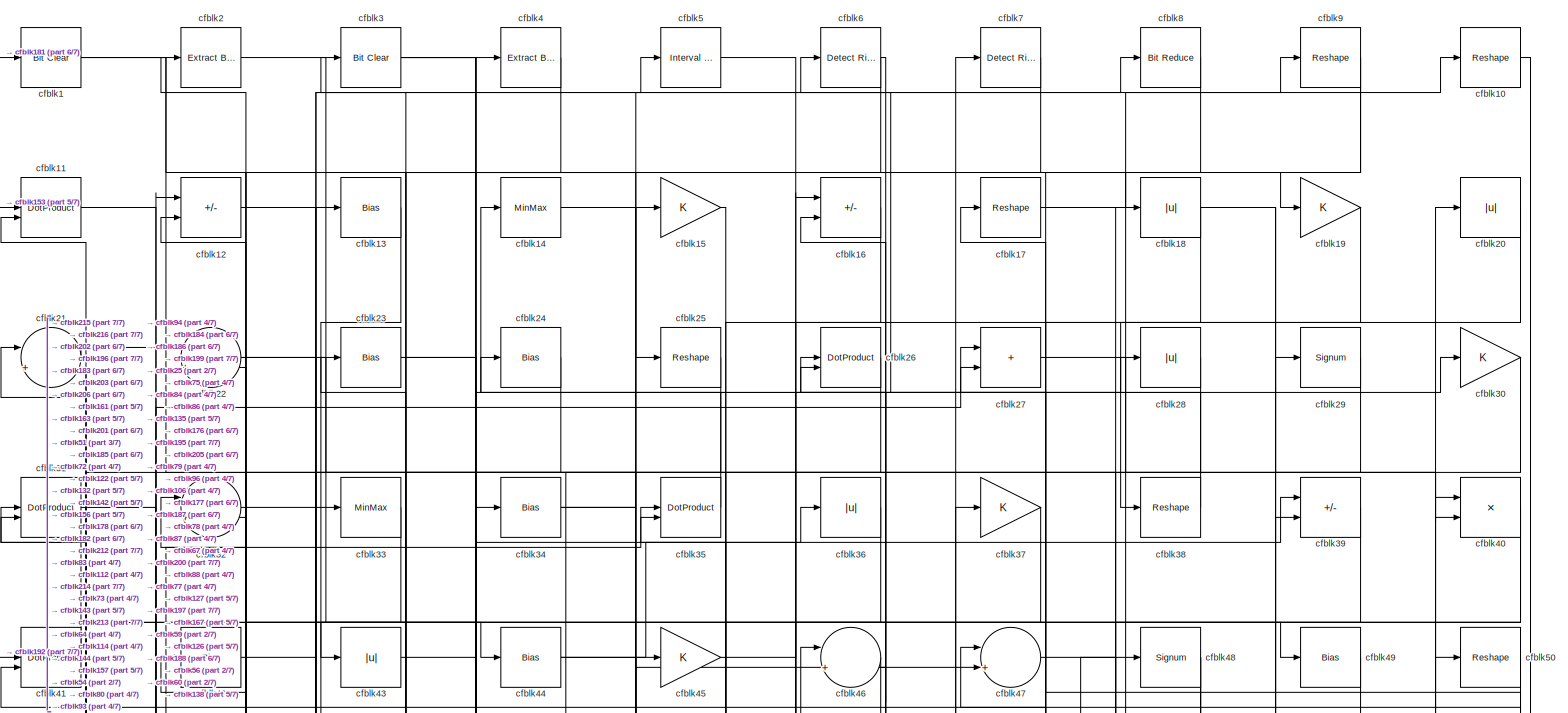
[diagram: root canvas - part 1/7, full width, top band]
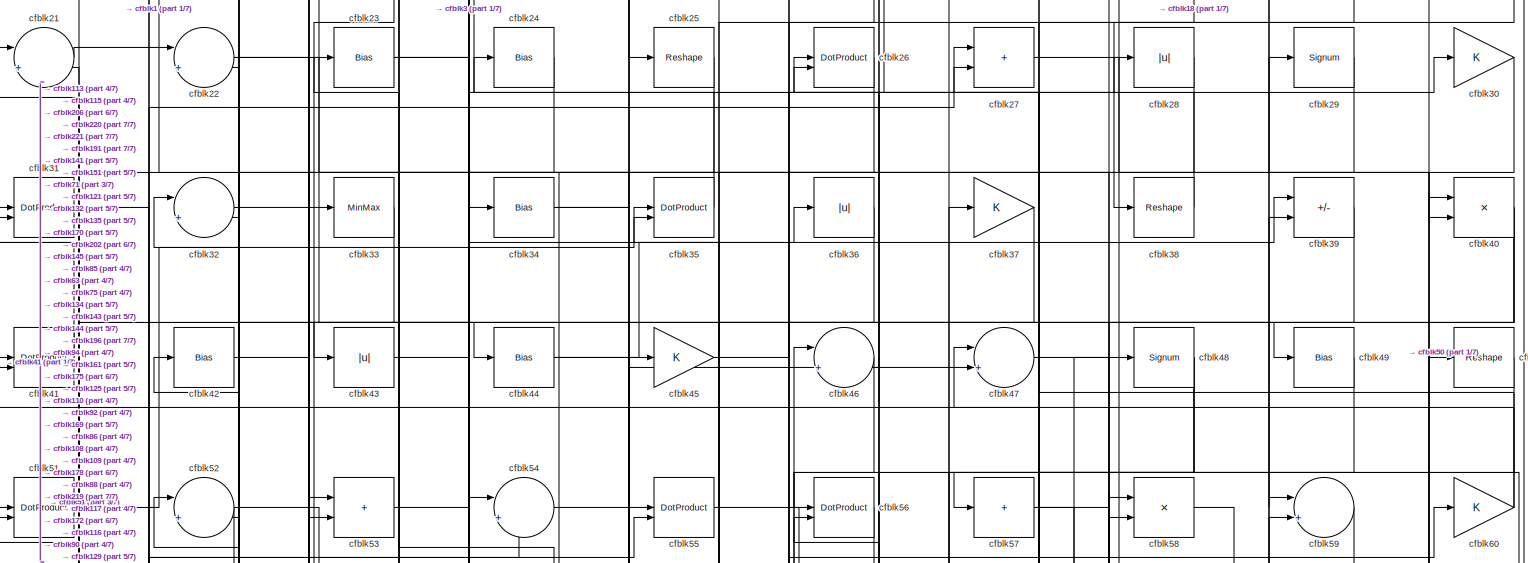
[diagram: root canvas - part 2/7, full width, top band]
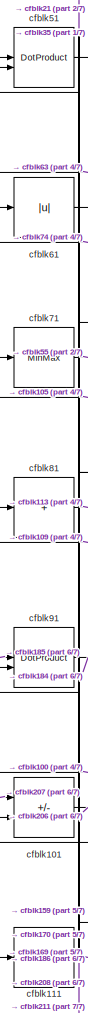
[diagram: root canvas - part 3/7, middle left region]
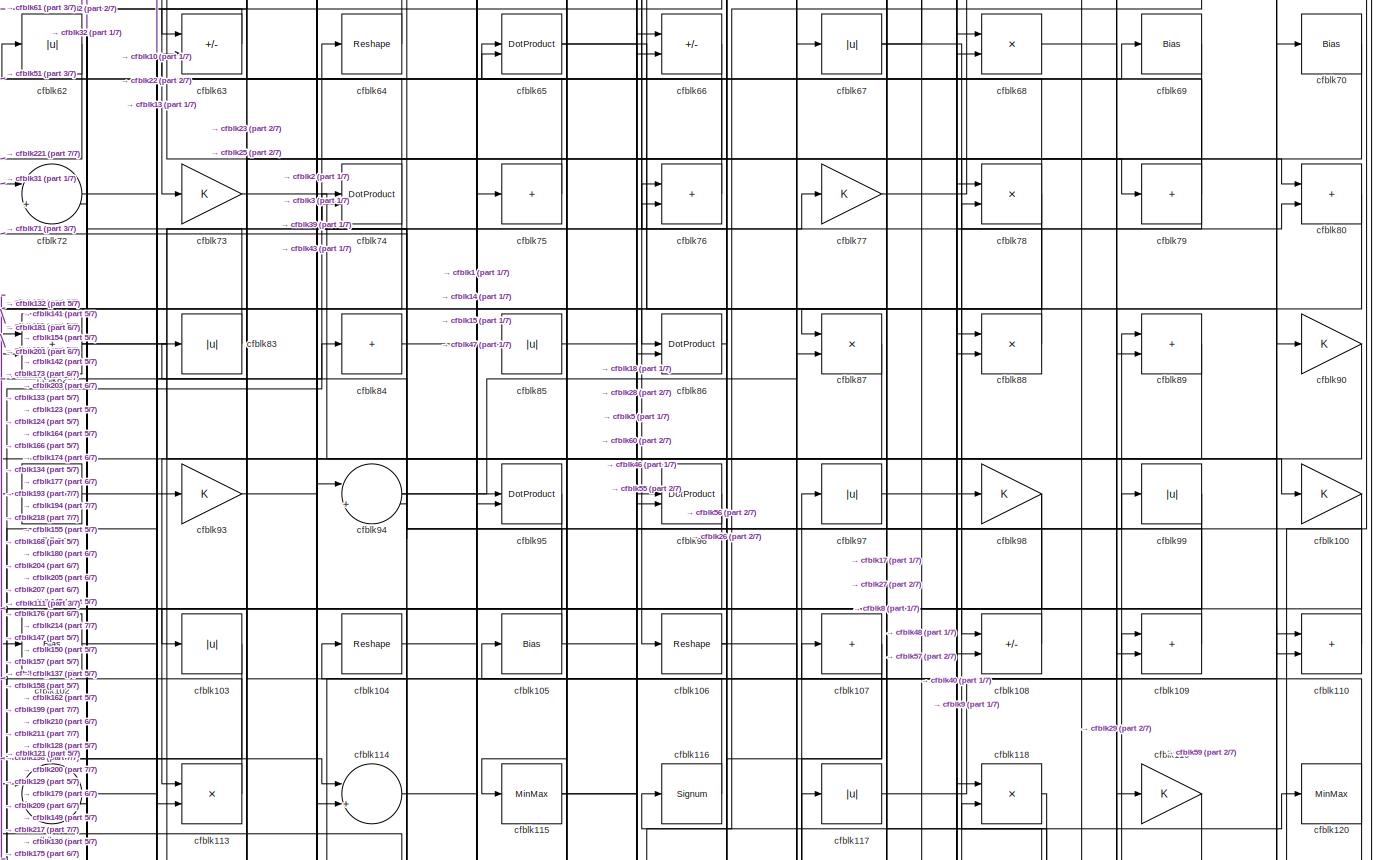
[diagram: root canvas - part 4/7, full width, middle band]
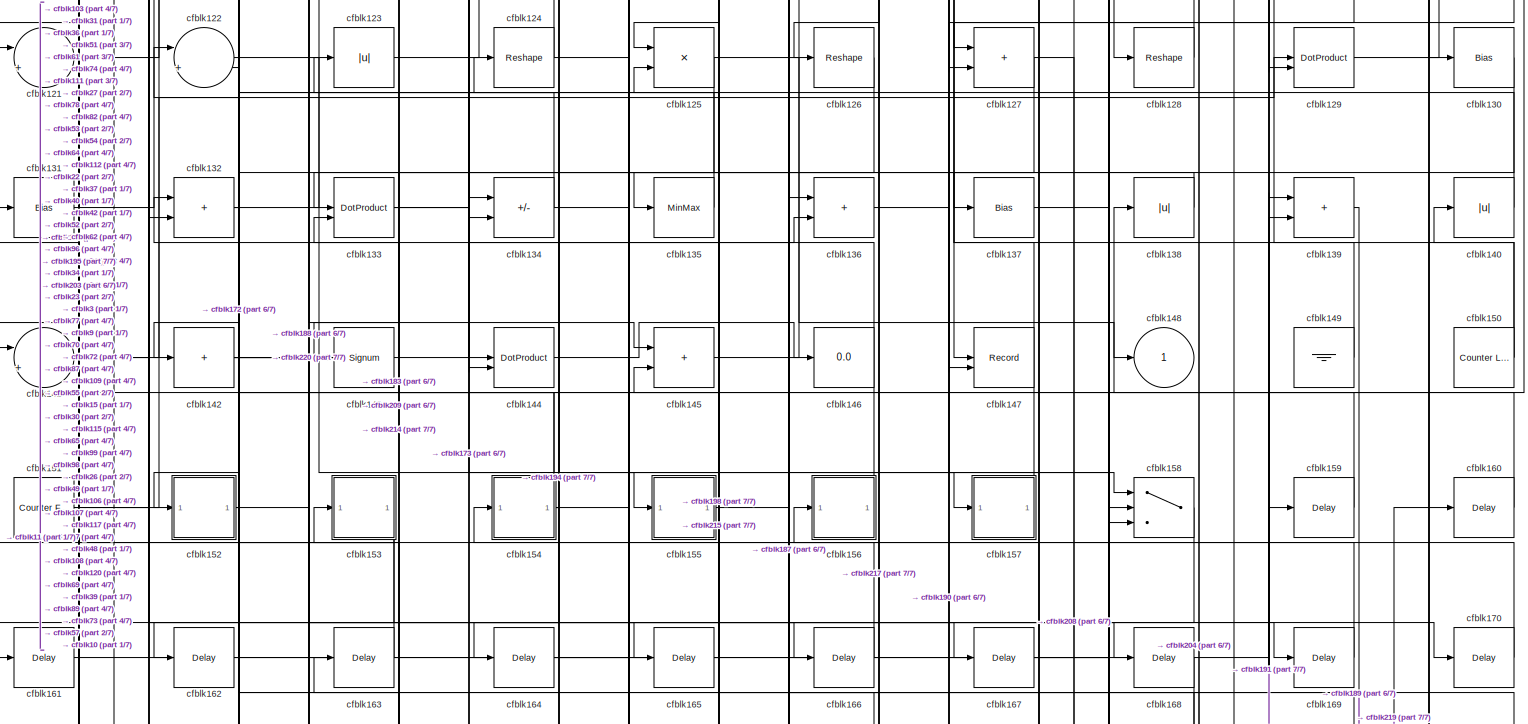
[diagram: root canvas - part 5/7, full width, middle band]
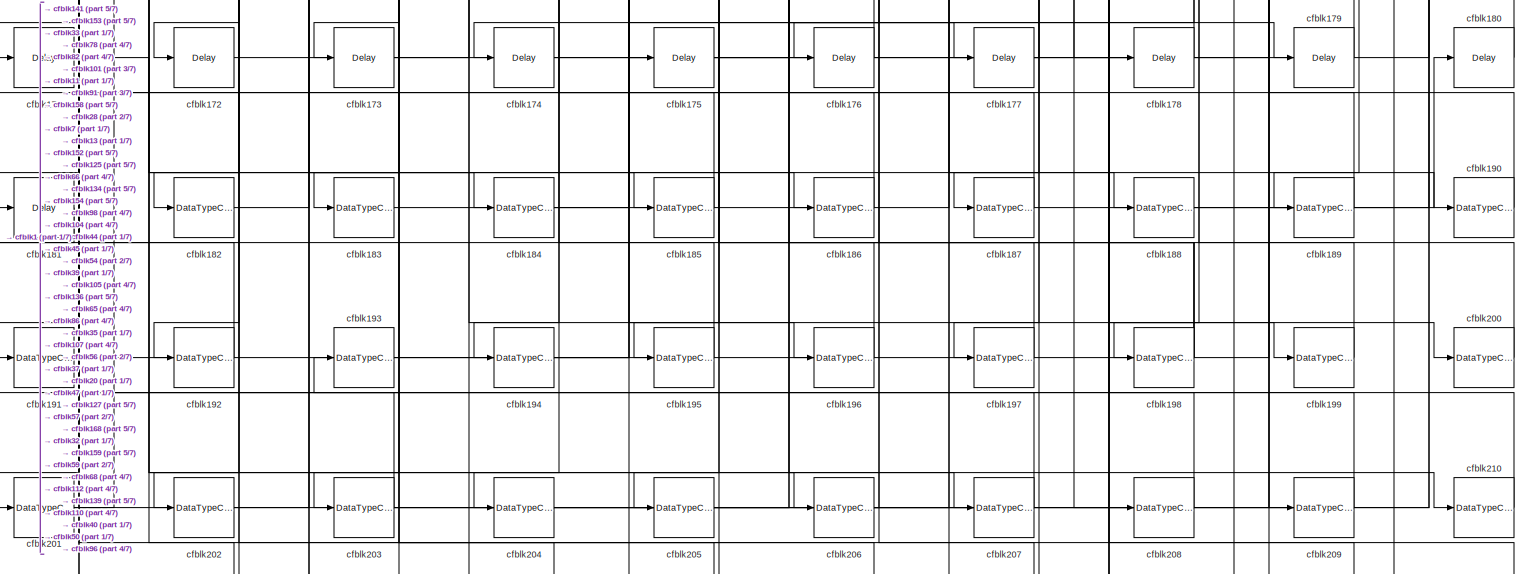
[diagram: root canvas - part 6/7, full width, bottom band]
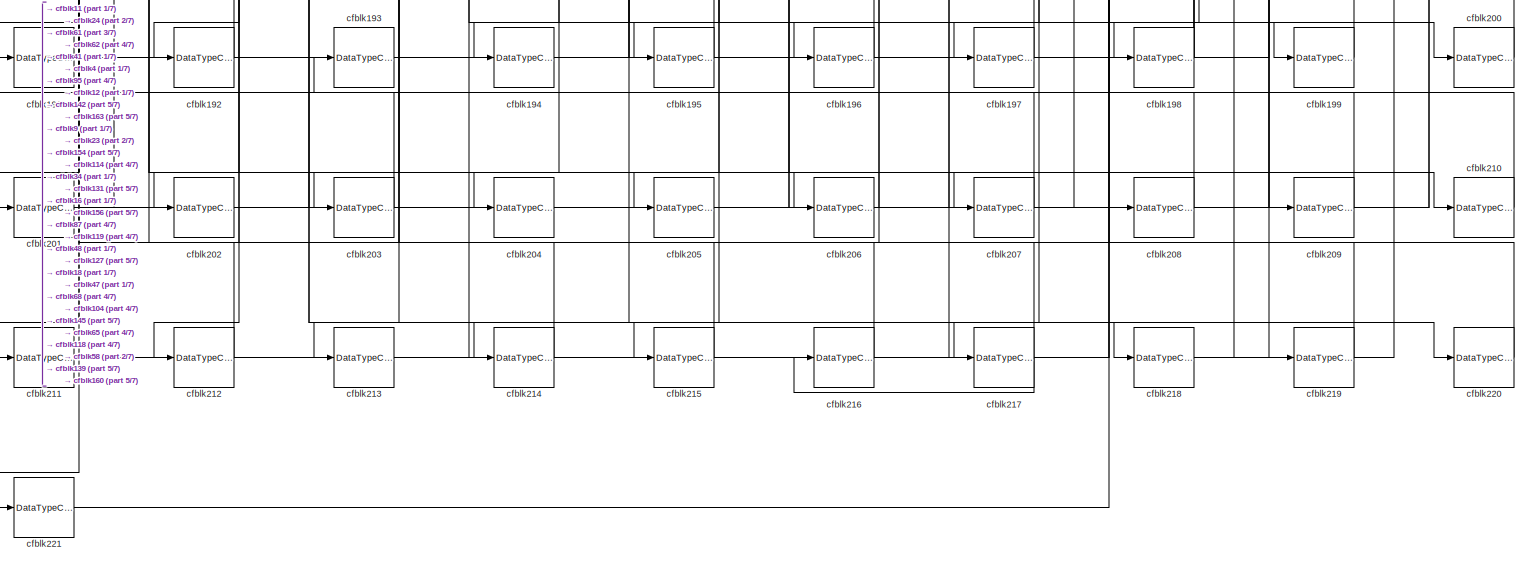
[diagram: root canvas - part 7/7, full width, bottom band]
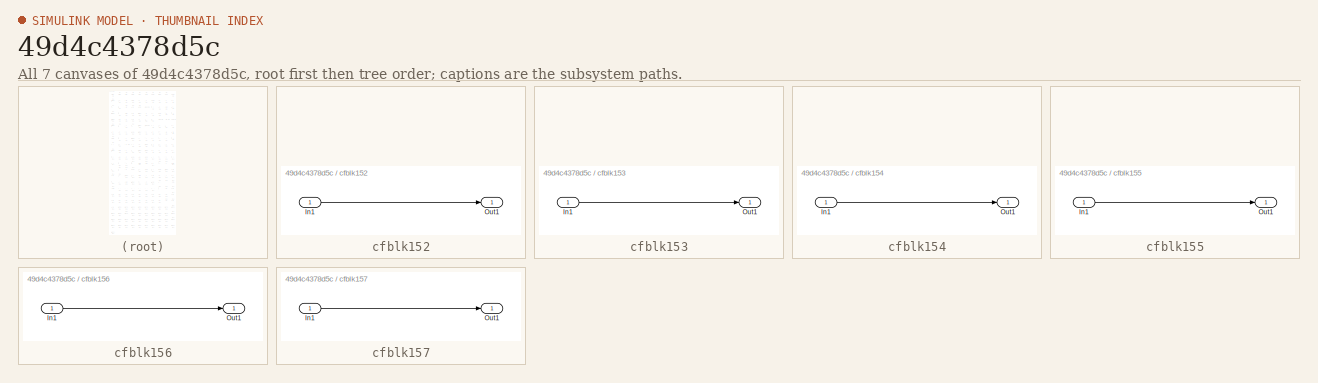
[diagram: thumbnail index - all 7 canvases of the model, root first then tree order]
MODEL slx_49d4c4378d5c
KIND model
CONFIG AbsTol = auto
CONFIG EnableMultiTasking = off
CONFIG FixedStep = auto
CONFIG MaxStep = auto
CONFIG MinStep = auto
CONFIG RelTol = 1e-3
CONFIG SampleTimeConstraint = Unconstrained
CONFIG SolverName = VariableStepAuto
CONFIG StartTime = 0.0
CONFIG StopTime = 10.0
BLOCK [Reference] cfblk1  REF=simulink/Logic and Bit
Operations/Bit Clear
  LibrarySourceBlock = hdlsllib/Logic and Bit\nOperations/Bit Clear
  SourceBlock = simulink/Logic and Bit\nOperations/Bit Clear
  SourceType = Bit Clear
BLOCK [Reshape] cfblk10
BLOCK [Gain] cfblk100
BLOCK [Sum] cfblk101
  IconShape = rectangular
  Inputs = +-
BLOCK [Bias] cfblk102
  Bias = 0.0
  SaturateOnIntegerOverflow = off
BLOCK [Abs] cfblk103
  SaturateOnIntegerOverflow = off
BLOCK [Reshape] cfblk104
BLOCK [Bias] cfblk105
  Bias = 0.0
  SaturateOnIntegerOverflow = off
BLOCK [Reshape] cfblk106
BLOCK [Sum] cfblk107
  IconShape = rectangular
  Inputs = +
BLOCK [Sum] cfblk108
  IconShape = rectangular
  Inputs = +-
BLOCK [Sum] cfblk109
  IconShape = rectangular
BLOCK [DotProduct] cfblk11
  OutDataTypeStr = Inherit: Inherit via internal rule
BLOCK [Sum] cfblk110
  IconShape = rectangular
BLOCK [Sum] cfblk111
  IconShape = rectangular
  Inputs = +
BLOCK [Sum] cfblk112
  Inputs = |++
BLOCK [Product] cfblk113
  Inputs = */
  RndMeth = Zero
  SaturateOnIntegerOverflow = on
BLOCK [Sum] cfblk114
  Inputs = |++
BLOCK [MinMax] cfblk115
BLOCK [Signum] cfblk116
BLOCK [Abs] cfblk117
  SaturateOnIntegerOverflow = off
BLOCK [Product] cfblk118
  Inputs = */
  RndMeth = Zero
  SaturateOnIntegerOverflow = on
BLOCK [Gain] cfblk119
BLOCK [Sum] cfblk12
  IconShape = rectangular
  Inputs = +-
BLOCK [MinMax] cfblk120
BLOCK [Sum] cfblk121
  Inputs = |++
BLOCK [Sum] cfblk122
  Inputs = |++
BLOCK [Abs] cfblk123
  SaturateOnIntegerOverflow = off
BLOCK [Reshape] cfblk124
BLOCK [Product] cfblk125
  Inputs = */
  RndMeth = Zero
  SaturateOnIntegerOverflow = on
BLOCK [Reshape] cfblk126
BLOCK [Sum] cfblk127
  IconShape = rectangular
BLOCK [Reshape] cfblk128
BLOCK [DotProduct] cfblk129
  OutDataTypeStr = Inherit: Inherit via internal rule
BLOCK [Bias] cfblk13
  Bias = 0.0
  SaturateOnIntegerOverflow = off
BLOCK [Bias] cfblk130
  Bias = 0.0
  SaturateOnIntegerOverflow = off
BLOCK [Bias] cfblk131
  Bias = 0.0
  SaturateOnIntegerOverflow = off
BLOCK [Sum] cfblk132
  IconShape = rectangular
BLOCK [DotProduct] cfblk133
  OutDataTypeStr = Inherit: Inherit via internal rule
BLOCK [Sum] cfblk134
  IconShape = rectangular
  Inputs = +-
BLOCK [MinMax] cfblk135
BLOCK [Sum] cfblk136
  IconShape = rectangular
BLOCK [Bias] cfblk137
  Bias = 0.0
  SaturateOnIntegerOverflow = off
BLOCK [Abs] cfblk138
  SaturateOnIntegerOverflow = off
BLOCK [Sum] cfblk139
  IconShape = rectangular
BLOCK [MinMax] cfblk14
BLOCK [Abs] cfblk140
  SaturateOnIntegerOverflow = off
BLOCK [Sum] cfblk141
  Inputs = |++
BLOCK [Sum] cfblk142
  IconShape = rectangular
  Inputs = +
BLOCK [Signum] cfblk143
BLOCK [DotProduct] cfblk144
  OutDataTypeStr = Inherit: Inherit via internal rule
BLOCK [Sum] cfblk145
  IconShape = rectangular
BLOCK [Display] cfblk146
  Decimation = 1
BLOCK [Record] cfblk147
  CompatibilityTag = XY
  FileSettingsInternal = {"entries":[{"content":{"excelSettings":{"content":{},"type":"Streamout.ExcelSettings"}},"type":"Streamout.FileSettingStorage","uuid":""}],"packageUris":["http:\/\/schema.mathworks.com\/mf0\/streamout_blocks\/R2020a"],"version":"1.0"}
  Layout = [1 1]
  SignalsInternal = {"entries":[{"content":{"signals":[{"content":{"blockPath":[],"dimensions":[1],"domain":"","lineColor":"#a2142f","plots":[1],"port":1,"signalID":3105,"signalName":"XY Graph:1"},"type":"RecordBlkView.Signal","uuid":""},{"content":{"blockPath":[],"dimensions":[1],"domain":"","lineColor":"#139fff","plots":[1],"port":2,"signalID":3108,"signalName":"XY Graph:2"},"type":"RecordBlkView.Signal","uuid":""}...<+146ch>
  VisualizationBindings = {"xyplotplugin":{"info":[{"series":[{"bindingParametersList":[{"parameter":"X-Axis","signalID":3105,"signalName":"XY Graph:1"},{"parameter":"Y-Axis","signalID":3108,"signalName":"XY Graph:2"}],"seriesID":46213}],"subplotID":1}]}}
  st = -1
BLOCK [Outport] cfblk148
  VectorParamsAs1DForOutWhenUnconnected = off
BLOCK [Ground] cfblk149
BLOCK [Gain] cfblk15
BLOCK [Reference] cfblk150  REF=hdlsllib/Sources/Counter
Limited
  SourceBlock = hdlsllib/Sources/Counter\nLimited
  SourceType = Counter Limited
BLOCK [Reference] cfblk151  REF=hdlsllib/Sources/Counter
Free-Running
  SourceBlock = hdlsllib/Sources/Counter\nFree-Running
  SourceType = Counter Free-Running
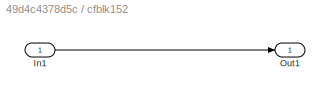
BLOCK [SubSystem] cfblk152
  LibrarySourceBlock = hdlsllib/Ports &\nSubsystems/Subsystem
BLOCK [Inport] cfblk152/In1
BLOCK [Outport] cfblk152/Out1
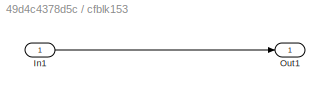
BLOCK [SubSystem] cfblk153
  LibrarySourceBlock = hdlsllib/Ports &\nSubsystems/Subsystem
BLOCK [Inport] cfblk153/In1
BLOCK [Outport] cfblk153/Out1
BLOCK [SubSystem] cfblk154
  LibrarySourceBlock = hdlsllib/Ports &\nSubsystems/Subsystem
BLOCK [Inport] cfblk154/In1
BLOCK [Outport] cfblk154/Out1
BLOCK [SubSystem] cfblk155
  LibrarySourceBlock = hdlsllib/Ports &\nSubsystems/Subsystem
BLOCK [Inport] cfblk155/In1
BLOCK [Outport] cfblk155/Out1
BLOCK [SubSystem] cfblk156
  LibrarySourceBlock = hdlsllib/Ports &\nSubsystems/Subsystem
BLOCK [Inport] cfblk156/In1
BLOCK [Outport] cfblk156/Out1
BLOCK [SubSystem] cfblk157
  LibrarySourceBlock = hdlsllib/Ports &\nSubsystems/Subsystem
BLOCK [Inport] cfblk157/In1
BLOCK [Outport] cfblk157/Out1
BLOCK [Switch] cfblk158
  InputSameDT = off
  SaturateOnIntegerOverflow = off
BLOCK [Delay] cfblk159
  InputPortMap = u0
  SampleTime = 1
BLOCK [Sum] cfblk16
  IconShape = rectangular
  Inputs = +-
BLOCK [Delay] cfblk160
  InputPortMap = u0
  SampleTime = 1
BLOCK [Delay] cfblk161
  InputPortMap = u0
  SampleTime = 1
BLOCK [Delay] cfblk162
  InputPortMap = u0
  SampleTime = 1
BLOCK [Delay] cfblk163
  InputPortMap = u0
  SampleTime = 1
BLOCK [Delay] cfblk164
  InputPortMap = u0
  SampleTime = 1
BLOCK [Delay] cfblk165
  InputPortMap = u0
  SampleTime = 1
BLOCK [Delay] cfblk166
  InputPortMap = u0
  SampleTime = 1
BLOCK [Delay] cfblk167
  InputPortMap = u0
  SampleTime = 1
BLOCK [Delay] cfblk168
  InputPortMap = u0
  SampleTime = 1
BLOCK [Delay] cfblk169
  InputPortMap = u0
  SampleTime = 1
BLOCK [Reshape] cfblk17
BLOCK [Delay] cfblk170
  InputPortMap = u0
  SampleTime = 1
BLOCK [Delay] cfblk171
  InputPortMap = u0
  SampleTime = 1
BLOCK [Delay] cfblk172
  InputPortMap = u0
  SampleTime = 1
BLOCK [Delay] cfblk173
  InputPortMap = u0
  SampleTime = 1
BLOCK [Delay] cfblk174
  InputPortMap = u0
  SampleTime = 1
BLOCK [Delay] cfblk175
  InputPortMap = u0
  SampleTime = 1
BLOCK [Delay] cfblk176
  InputPortMap = u0
  SampleTime = 1
BLOCK [Delay] cfblk177
  InputPortMap = u0
  SampleTime = 1
BLOCK [Delay] cfblk178
  InputPortMap = u0
  SampleTime = 1
BLOCK [Delay] cfblk179
  InputPortMap = u0
  SampleTime = 1
BLOCK [Abs] cfblk18
  SaturateOnIntegerOverflow = off
BLOCK [Delay] cfblk180
  InputPortMap = u0
  SampleTime = 1
BLOCK [Delay] cfblk181
  InputPortMap = u0
  SampleTime = 1
BLOCK [DataTypeConversion] cfblk182
  OutDataTypeStr = uint8
  RndMeth = Floor
  SaturateOnIntegerOverflow = off
BLOCK [DataTypeConversion] cfblk183
  OutDataTypeStr = uint8
  RndMeth = Floor
  SaturateOnIntegerOverflow = off
BLOCK [DataTypeConversion] cfblk184
  OutDataTypeStr = uint8
  RndMeth = Floor
  SaturateOnIntegerOverflow = off
BLOCK [DataTypeConversion] cfblk185
  OutDataTypeStr = uint8
  RndMeth = Floor
  SaturateOnIntegerOverflow = off
BLOCK [DataTypeConversion] cfblk186
  OutDataTypeStr = uint8
  RndMeth = Floor
  SaturateOnIntegerOverflow = off
BLOCK [DataTypeConversion] cfblk187
  RndMeth = Floor
  SaturateOnIntegerOverflow = off
BLOCK [DataTypeConversion] cfblk188
  OutDataTypeStr = uint8
  RndMeth = Floor
  SaturateOnIntegerOverflow = off
BLOCK [DataTypeConversion] cfblk189
  OutDataTypeStr = uint8
  RndMeth = Floor
  SaturateOnIntegerOverflow = off
BLOCK [Gain] cfblk19
BLOCK [DataTypeConversion] cfblk190
  OutDataTypeStr = uint8
  RndMeth = Floor
  SaturateOnIntegerOverflow = off
BLOCK [DataTypeConversion] cfblk191
  OutDataTypeStr = uint8
  RndMeth = Floor
  SaturateOnIntegerOverflow = off
BLOCK [DataTypeConversion] cfblk192
  OutDataTypeStr = uint8
  RndMeth = Floor
  SaturateOnIntegerOverflow = off
BLOCK [DataTypeConversion] cfblk193
  OutDataTypeStr = uint8
  RndMeth = Floor
  SaturateOnIntegerOverflow = off
BLOCK [DataTypeConversion] cfblk194
  OutDataTypeStr = uint8
  RndMeth = Floor
  SaturateOnIntegerOverflow = off
BLOCK [DataTypeConversion] cfblk195
  OutDataTypeStr = uint8
  RndMeth = Floor
  SaturateOnIntegerOverflow = off
BLOCK [DataTypeConversion] cfblk196
  OutDataTypeStr = uint8
  RndMeth = Floor
  SaturateOnIntegerOverflow = off
BLOCK [DataTypeConversion] cfblk197
  OutDataTypeStr = uint8
  RndMeth = Floor
  SaturateOnIntegerOverflow = off
BLOCK [DataTypeConversion] cfblk198
  RndMeth = Floor
  SaturateOnIntegerOverflow = off
BLOCK [DataTypeConversion] cfblk199
  OutDataTypeStr = uint8
  RndMeth = Floor
  SaturateOnIntegerOverflow = off
BLOCK [Reference] cfblk2  REF=simulink/Logic and Bit
Operations/Extract Bits
  LibrarySourceBlock = hdlsllib/Logic and Bit\nOperations/Extract Bits
  SourceBlock = simulink/Logic and Bit\nOperations/Extract Bits
  SourceType = Extract Bits
BLOCK [Abs] cfblk20
  SaturateOnIntegerOverflow = off
BLOCK [DataTypeConversion] cfblk200
  OutDataTypeStr = uint8
  RndMeth = Floor
  SaturateOnIntegerOverflow = off
BLOCK [DataTypeConversion] cfblk201
  RndMeth = Floor
  SaturateOnIntegerOverflow = off
BLOCK [DataTypeConversion] cfblk202
  OutDataTypeStr = uint8
  RndMeth = Floor
  SaturateOnIntegerOverflow = off
BLOCK [DataTypeConversion] cfblk203
  RndMeth = Floor
  SaturateOnIntegerOverflow = off
BLOCK [DataTypeConversion] cfblk204
  OutDataTypeStr = uint8
  RndMeth = Floor
  SaturateOnIntegerOverflow = off
BLOCK [DataTypeConversion] cfblk205
  OutDataTypeStr = uint8
  RndMeth = Floor
  SaturateOnIntegerOverflow = off
BLOCK [DataTypeConversion] cfblk206
  RndMeth = Floor
  SaturateOnIntegerOverflow = off
BLOCK [DataTypeConversion] cfblk207
  OutDataTypeStr = uint8
  RndMeth = Floor
  SaturateOnIntegerOverflow = off
BLOCK [DataTypeConversion] cfblk208
  OutDataTypeStr = uint8
  RndMeth = Floor
  SaturateOnIntegerOverflow = off
BLOCK [DataTypeConversion] cfblk209
  OutDataTypeStr = uint8
  RndMeth = Floor
  SaturateOnIntegerOverflow = off
BLOCK [Sum] cfblk21
  Inputs = |++
BLOCK [DataTypeConversion] cfblk210
  OutDataTypeStr = uint8
  RndMeth = Floor
  SaturateOnIntegerOverflow = off
BLOCK [DataTypeConversion] cfblk211
  OutDataTypeStr = uint8
  RndMeth = Floor
  SaturateOnIntegerOverflow = off
BLOCK [DataTypeConversion] cfblk212
  RndMeth = Floor
  SaturateOnIntegerOverflow = off
BLOCK [DataTypeConversion] cfblk213
  OutDataTypeStr = uint8
  RndMeth = Floor
  SaturateOnIntegerOverflow = off
BLOCK [DataTypeConversion] cfblk214
  RndMeth = Floor
  SaturateOnIntegerOverflow = off
BLOCK [DataTypeConversion] cfblk215
  OutDataTypeStr = uint8
  RndMeth = Floor
  SaturateOnIntegerOverflow = off
BLOCK [DataTypeConversion] cfblk216
  OutDataTypeStr = uint8
  RndMeth = Floor
  SaturateOnIntegerOverflow = off
BLOCK [DataTypeConversion] cfblk217
  RndMeth = Floor
  SaturateOnIntegerOverflow = off
BLOCK [DataTypeConversion] cfblk218
  OutDataTypeStr = uint8
  RndMeth = Floor
  SaturateOnIntegerOverflow = off
BLOCK [DataTypeConversion] cfblk219
  RndMeth = Floor
  SaturateOnIntegerOverflow = off
BLOCK [Sum] cfblk22
  Inputs = |++
BLOCK [DataTypeConversion] cfblk220
  OutDataTypeStr = uint8
  RndMeth = Floor
  SaturateOnIntegerOverflow = off
BLOCK [DataTypeConversion] cfblk221
  OutDataTypeStr = uint8
  RndMeth = Floor
  SaturateOnIntegerOverflow = off
BLOCK [Bias] cfblk23
  Bias = 0.0
  SaturateOnIntegerOverflow = off
BLOCK [Bias] cfblk24
  Bias = 0.0
  SaturateOnIntegerOverflow = off
BLOCK [Reshape] cfblk25
BLOCK [DotProduct] cfblk26
  OutDataTypeStr = Inherit: Inherit via internal rule
BLOCK [Sum] cfblk27
  IconShape = rectangular
BLOCK [Abs] cfblk28
  SaturateOnIntegerOverflow = off
BLOCK [Signum] cfblk29
BLOCK [Reference] cfblk3  REF=simulink/Logic and Bit
Operations/Bit Clear
  LibrarySourceBlock = hdlsllib/Logic and Bit\nOperations/Bit Clear
  SourceBlock = simulink/Logic and Bit\nOperations/Bit Clear
  SourceType = Bit Clear
BLOCK [Gain] cfblk30
BLOCK [DotProduct] cfblk31
  OutDataTypeStr = Inherit: Inherit via internal rule
BLOCK [Sum] cfblk32
  Inputs = |++
BLOCK [MinMax] cfblk33
BLOCK [Bias] cfblk34
  Bias = 0.0
  SaturateOnIntegerOverflow = off
BLOCK [DotProduct] cfblk35
  OutDataTypeStr = Inherit: Inherit via internal rule
BLOCK [Abs] cfblk36
  SaturateOnIntegerOverflow = off
BLOCK [Gain] cfblk37
BLOCK [Reshape] cfblk38
BLOCK [Sum] cfblk39
  IconShape = rectangular
  Inputs = +-
BLOCK [Reference] cfblk4  REF=simulink/Logic and Bit
Operations/Extract Bits
  LibrarySourceBlock = hdlsllib/Logic and Bit\nOperations/Extract Bits
  SourceBlock = simulink/Logic and Bit\nOperations/Extract Bits
  SourceType = Extract Bits
BLOCK [Product] cfblk40
  Inputs = */
  RndMeth = Zero
  SaturateOnIntegerOverflow = on
BLOCK [DotProduct] cfblk41
  OutDataTypeStr = Inherit: Inherit via internal rule
BLOCK [Bias] cfblk42
  Bias = 0.0
  SaturateOnIntegerOverflow = off
BLOCK [Abs] cfblk43
  SaturateOnIntegerOverflow = off
BLOCK [Bias] cfblk44
  Bias = 0.0
  SaturateOnIntegerOverflow = off
BLOCK [Gain] cfblk45
BLOCK [Sum] cfblk46
  Inputs = |++
BLOCK [Sum] cfblk47
  Inputs = |++
BLOCK [Signum] cfblk48
BLOCK [Bias] cfblk49
  Bias = 0.0
  SaturateOnIntegerOverflow = off
BLOCK [Reference] cfblk5  REF=hdlsllib/Logic and Bit
Operations/Interval Test
  SourceBlock = hdlsllib/Logic and Bit\nOperations/Interval Test
  SourceType = Interval Test
BLOCK [Reshape] cfblk50
BLOCK [DotProduct] cfblk51
  OutDataTypeStr = Inherit: Inherit via internal rule
BLOCK [Sum] cfblk52
  Inputs = |++
BLOCK [Sum] cfblk53
  IconShape = rectangular
BLOCK [Sum] cfblk54
  Inputs = |++
BLOCK [DotProduct] cfblk55
  OutDataTypeStr = Inherit: Inherit via internal rule
BLOCK [DotProduct] cfblk56
  OutDataTypeStr = Inherit: Inherit via internal rule
BLOCK [Sum] cfblk57
  IconShape = rectangular
  Inputs = +
BLOCK [Product] cfblk58
  Inputs = */
  RndMeth = Zero
  SaturateOnIntegerOverflow = on
BLOCK [Sum] cfblk59
  Inputs = |++
BLOCK [Reference] cfblk6  REF=hdlsllib/Logic and Bit
Operations/Detect Rise
Nonnegative
  SourceBlock = hdlsllib/Logic and Bit\nOperations/Detect Rise\nNonnegative
  SourceType = Detect Rise Nonnegative
BLOCK [Gain] cfblk60
BLOCK [Abs] cfblk61
  SaturateOnIntegerOverflow = off
BLOCK [Abs] cfblk62
  SaturateOnIntegerOverflow = off
BLOCK [Sum] cfblk63
  IconShape = rectangular
  Inputs = +-
BLOCK [Reshape] cfblk64
BLOCK [DotProduct] cfblk65
  OutDataTypeStr = Inherit: Inherit via internal rule
BLOCK [Sum] cfblk66
  IconShape = rectangular
  Inputs = +-
BLOCK [Abs] cfblk67
  SaturateOnIntegerOverflow = off
BLOCK [Product] cfblk68
  Inputs = */
  RndMeth = Zero
  SaturateOnIntegerOverflow = on
BLOCK [Bias] cfblk69
  Bias = 0.0
  SaturateOnIntegerOverflow = off
BLOCK [Reference] cfblk7  REF=hdlsllib/Logic and Bit
Operations/Detect Rise
Nonnegative
  SourceBlock = hdlsllib/Logic and Bit\nOperations/Detect Rise\nNonnegative
  SourceType = Detect Rise Nonnegative
BLOCK [Bias] cfblk70
  Bias = 0.0
  SaturateOnIntegerOverflow = off
BLOCK [MinMax] cfblk71
BLOCK [Sum] cfblk72
  Inputs = |++
BLOCK [Gain] cfblk73
BLOCK [DotProduct] cfblk74
  OutDataTypeStr = Inherit: Inherit via internal rule
BLOCK [Sum] cfblk75
  IconShape = rectangular
  Inputs = +
BLOCK [Sum] cfblk76
  IconShape = rectangular
BLOCK [Gain] cfblk77
BLOCK [Product] cfblk78
  Inputs = */
  RndMeth = Zero
  SaturateOnIntegerOverflow = on
BLOCK [Sum] cfblk79
  IconShape = rectangular
  Inputs = +
BLOCK [Reference] cfblk8  REF=hdlsllib/Logic and Bit
Operations/Bit Reduce
  SourceBlock = hdlsllib/Logic and Bit\nOperations/Bit Reduce
  SourceType = Bit Reduce
BLOCK [Sum] cfblk80
  IconShape = rectangular
BLOCK [Sum] cfblk81
  IconShape = rectangular
  Inputs = +
BLOCK [Sum] cfblk82
  IconShape = rectangular
BLOCK [Abs] cfblk83
  SaturateOnIntegerOverflow = off
BLOCK [Sum] cfblk84
  IconShape = rectangular
  Inputs = +
BLOCK [Abs] cfblk85
  SaturateOnIntegerOverflow = off
BLOCK [DotProduct] cfblk86
  OutDataTypeStr = Inherit: Inherit via internal rule
BLOCK [Product] cfblk87
  Inputs = */
  RndMeth = Zero
  SaturateOnIntegerOverflow = on
BLOCK [Product] cfblk88
  Inputs = */
  RndMeth = Zero
  SaturateOnIntegerOverflow = on
BLOCK [Sum] cfblk89
  IconShape = rectangular
BLOCK [Reshape] cfblk9
BLOCK [Gain] cfblk90
BLOCK [DotProduct] cfblk91
  OutDataTypeStr = Inherit: Inherit via internal rule
BLOCK [MinMax] cfblk92
BLOCK [Gain] cfblk93
BLOCK [Sum] cfblk94
  Inputs = |++
BLOCK [DotProduct] cfblk95
  OutDataTypeStr = Inherit: Inherit via internal rule
BLOCK [DotProduct] cfblk96
  OutDataTypeStr = Inherit: Inherit via internal rule
BLOCK [Abs] cfblk97
  SaturateOnIntegerOverflow = off
BLOCK [Gain] cfblk98
BLOCK [Abs] cfblk99
  SaturateOnIntegerOverflow = off
LINE cfblk100:1 -> cfblk111:1
LINE cfblk101:1 -> cfblk206:1
LINE cfblk102:1 -> cfblk69:1
LINE cfblk103:1 -> cfblk121:1
LINE cfblk104:1 -> cfblk177:1
NET cfblk105:1 -> cfblk207:1, cfblk71:1
NET cfblk106:1 -> cfblk158:1, cfblk76:1
NET cfblk107:1 -> cfblk147:1, cfblk176:1
LINE cfblk108:1 -> cfblk27:1
LINE cfblk109:1 -> cfblk81:1
LINE cfblk10:1 -> cfblk138:1
LINE cfblk110:1 -> cfblk74:1
LINE cfblk111:1 -> cfblk169:1
LINE cfblk112:1 -> cfblk10:1
LINE cfblk113:1 -> cfblk21:1
LINE cfblk114:1 -> cfblk218:1
NET cfblk115:1 -> cfblk168:1, cfblk28:1
LINE cfblk116:1 -> cfblk105:1
LINE cfblk117:1 -> cfblk29:1
LINE cfblk118:1 -> cfblk198:1
LINE cfblk119:1 -> cfblk217:1
LINE cfblk11:1 -> cfblk185:1
NET cfblk120:1 -> cfblk147:2, cfblk83:1
LINE cfblk121:1 -> cfblk53:1
LINE cfblk122:1 -> cfblk155:1
LINE cfblk123:1 -> cfblk70:1
NET cfblk124:1 -> cfblk158:3, cfblk72:2
NET cfblk125:1 -> cfblk148:1, cfblk183:1
LINE cfblk126:1 -> cfblk162:1
NET cfblk127:1 -> cfblk208:1, cfblk215:1
LINE cfblk128:1 -> cfblk107:1
LINE cfblk129:1 -> cfblk57:1
LINE cfblk12:1 -> cfblk214:1
LINE cfblk130:1 -> cfblk133:1
LINE cfblk131:1 -> cfblk82:2
NET cfblk132:1 -> cfblk22:2, cfblk34:1
NET cfblk133:1 -> cfblk136:2, cfblk77:1
NET cfblk134:1 -> cfblk109:1, cfblk112:1
LINE cfblk135:1 -> cfblk52:1
LINE cfblk136:1 -> cfblk190:1
LINE cfblk137:1 -> cfblk120:1
LINE cfblk138:1 -> cfblk137:1
LINE cfblk139:1 -> cfblk189:1
LINE cfblk13:1 -> cfblk73:1
LINE cfblk140:1 -> cfblk123:1
NET cfblk141:1 -> cfblk54:2, cfblk64:1
NET cfblk142:1 -> cfblk165:1, cfblk166:1, cfblk220:1, cfblk84:1
LINE cfblk143:1 -> cfblk30:1
LINE cfblk144:1 -> cfblk146:1
LINE cfblk145:1 -> cfblk98:1
LINE cfblk149:1 -> cfblk89:1
LINE cfblk14:1 -> cfblk86:1
NET cfblk150:1 -> cfblk117:1, cfblk140:1
NET cfblk151:1 -> cfblk129:1, cfblk27:2
LINE cfblk152/In1:1 -> cfblk152/Out1:1
NET cfblk152:1 -> cfblk132:1, cfblk188:1
LINE cfblk153/In1:1 -> cfblk153/Out1:1
NET cfblk153:1 -> cfblk11:1, cfblk171:1
LINE cfblk154/In1:1 -> cfblk154/Out1:1
NET cfblk154:1 -> cfblk122:1, cfblk124:1, cfblk167:1, cfblk194:1, cfblk62:1
LINE cfblk155/In1:1 -> cfblk155/Out1:1
LINE cfblk155:1 -> cfblk99:1
LINE cfblk156/In1:1 -> cfblk156/Out1:1
LINE cfblk156:1 -> cfblk42:1
LINE cfblk157/In1:1 -> cfblk157/Out1:1
LINE cfblk157:1 -> cfblk97:1
LINE cfblk158:1 -> cfblk172:1
LINE cfblk159:1 -> cfblk51:1
LINE cfblk15:1 -> cfblk135:1
LINE cfblk160:1 -> cfblk133:2
LINE cfblk161:1 -> cfblk55:1
LINE cfblk162:1 -> cfblk78:1
LINE cfblk163:1 -> cfblk31:2
LINE cfblk164:1 -> cfblk108:2
LINE cfblk165:1 -> cfblk125:2
LINE cfblk166:1 -> cfblk74:2
LINE cfblk167:1 -> cfblk39:2
LINE cfblk168:1 -> cfblk204:1
LINE cfblk169:1 -> cfblk26:2
LINE cfblk16:1 -> cfblk195:1
LINE cfblk170:1 -> cfblk52:2
LINE cfblk171:1 -> cfblk210:1
LINE cfblk172:1 -> cfblk59:2
LINE cfblk173:1 -> cfblk134:2
LINE cfblk174:1 -> cfblk86:2
LINE cfblk175:1 -> cfblk110:1
LINE cfblk176:1 -> cfblk35:2
LINE cfblk177:1 -> cfblk47:1
LINE cfblk178:1 -> cfblk32:2
LINE cfblk179:1 -> cfblk112:2
LINE cfblk17:1 -> cfblk19:1
LINE cfblk180:1 -> cfblk96:1
LINE cfblk181:1 -> cfblk1:1
LINE cfblk182:1 -> cfblk13:1
LINE cfblk183:1 -> cfblk7:1
LINE cfblk184:1 -> cfblk45:1
LINE cfblk185:1 -> cfblk91:1
LINE cfblk186:1 -> cfblk91:2
NET cfblk187:1 -> cfblk136:1, cfblk180:1
LINE cfblk188:1 -> cfblk20:1
LINE cfblk189:1 -> cfblk154:1
NET cfblk18:1 -> cfblk40:2, cfblk59:1, cfblk96:2
LINE cfblk190:1 -> cfblk139:1
LINE cfblk191:1 -> cfblk139:2
LINE cfblk192:1 -> cfblk41:1
LINE cfblk193:1 -> cfblk95:1
LINE cfblk194:1 -> cfblk95:2
LINE cfblk195:1 -> cfblk131:1
LINE cfblk196:1 -> cfblk16:1
LINE cfblk197:1 -> cfblk16:2
NET cfblk198:1 -> cfblk104:1, cfblk145:2, cfblk65:2
LINE cfblk199:1 -> cfblk118:1
LINE cfblk19:1 -> cfblk38:1
NET cfblk1:1 -> cfblk25:1, cfblk75:1
LINE cfblk200:1 -> cfblk118:2
NET cfblk201:1 -> cfblk50:1, cfblk82:1
LINE cfblk202:1 -> cfblk33:1
NET cfblk203:1 -> cfblk141:2, cfblk159:1, cfblk37:1
LINE cfblk204:1 -> cfblk66:1
LINE cfblk205:1 -> cfblk66:2
NET cfblk206:1 -> cfblk40:1, cfblk56:2
LINE cfblk207:1 -> cfblk101:1
LINE cfblk208:1 -> cfblk101:2
LINE cfblk209:1 -> cfblk153:1
LINE cfblk20:1 -> cfblk187:1
LINE cfblk210:1 -> cfblk68:1
LINE cfblk211:1 -> cfblk68:2
NET cfblk212:1 -> cfblk11:2, cfblk18:1
LINE cfblk213:1 -> cfblk4:1
NET cfblk214:1 -> cfblk163:1, cfblk87:2
LINE cfblk215:1 -> cfblk12:1
LINE cfblk216:1 -> cfblk12:2
NET cfblk217:1 -> cfblk156:1, cfblk216:1
LINE cfblk218:1 -> cfblk119:1
NET cfblk219:1 -> cfblk160:1, cfblk193:1
LINE cfblk21:1 -> cfblk22:1
LINE cfblk220:1 -> cfblk58:1
LINE cfblk221:1 -> cfblk58:2
NET cfblk22:1 -> cfblk145:1, cfblk88:1
NET cfblk23:1 -> cfblk134:1, cfblk196:1
LINE cfblk24:1 -> cfblk191:1
LINE cfblk25:1 -> cfblk63:1
LINE cfblk26:1 -> cfblk94:2
LINE cfblk27:1 -> cfblk90:1
LINE cfblk28:1 -> cfblk202:1
LINE cfblk29:1 -> cfblk53:2
LINE cfblk2:1 -> cfblk94:1
LINE cfblk30:1 -> cfblk125:1
LINE cfblk31:1 -> cfblk72:1
LINE cfblk32:1 -> cfblk5:1
LINE cfblk33:1 -> cfblk201:1
NET cfblk34:1 -> cfblk199:1, cfblk8:1
LINE cfblk35:1 -> cfblk14:1
LINE cfblk36:1 -> cfblk161:1
LINE cfblk37:1 -> cfblk142:1
LINE cfblk38:1 -> cfblk6:1
LINE cfblk39:1 -> cfblk205:1
NET cfblk3:1 -> cfblk114:2, cfblk157:1, cfblk54:1
NET cfblk40:1 -> cfblk122:2, cfblk43:1, cfblk88:2
LINE cfblk41:1 -> cfblk31:1
LINE cfblk42:1 -> cfblk44:1
LINE cfblk43:1 -> cfblk80:1
NET cfblk44:1 -> cfblk186:1, cfblk36:1
LINE cfblk45:1 -> cfblk49:1
LINE cfblk46:1 -> cfblk106:1
LINE cfblk47:1 -> cfblk200:1
NET cfblk48:1 -> cfblk127:1, cfblk127:2, cfblk197:1
LINE cfblk49:1 -> cfblk126:1
LINE cfblk4:1 -> cfblk212:1
LINE cfblk50:1 -> cfblk56:1
NET cfblk51:1 -> cfblk21:2, cfblk35:1
NET cfblk52:1 -> cfblk121:2, cfblk85:1
LINE cfblk53:1 -> cfblk144:1
LINE cfblk54:1 -> cfblk175:1
LINE cfblk55:1 -> cfblk110:2
LINE cfblk56:1 -> cfblk92:1
NET cfblk57:1 -> cfblk109:2, cfblk178:1
LINE cfblk58:1 -> cfblk219:1
LINE cfblk59:1 -> cfblk116:1
LINE cfblk5:1 -> cfblk79:1
NET cfblk60:1 -> cfblk24:1, cfblk41:2
NET cfblk61:1 -> cfblk170:1, cfblk211:1
LINE cfblk62:1 -> cfblk221:1
LINE cfblk63:1 -> cfblk61:1
LINE cfblk64:1 -> cfblk3:1
NET cfblk65:1 -> cfblk129:2, cfblk179:1
LINE cfblk66:1 -> cfblk203:1
NET cfblk67:1 -> cfblk108:1, cfblk48:1
LINE cfblk68:1 -> cfblk209:1
LINE cfblk69:1 -> cfblk128:1
NET cfblk6:1 -> cfblk143:1, cfblk46:2
LINE cfblk70:1 -> cfblk103:1
LINE cfblk71:1 -> cfblk55:2
LINE cfblk72:1 -> cfblk114:1
LINE cfblk73:1 -> cfblk130:1
NET cfblk74:1 -> cfblk141:1, cfblk51:2
LINE cfblk75:1 -> cfblk23:1
LINE cfblk76:1 -> cfblk63:2
LINE cfblk77:1 -> cfblk9:1
NET cfblk78:1 -> cfblk132:2, cfblk17:1, cfblk181:1
NET cfblk79:1 -> cfblk2:1, cfblk65:1, cfblk78:2
LINE cfblk7:1 -> cfblk182:1
LINE cfblk80:1 -> cfblk89:2
LINE cfblk81:1 -> cfblk113:2
NET cfblk82:1 -> cfblk100:1, cfblk76:2
LINE cfblk83:1 -> cfblk32:1
LINE cfblk84:1 -> cfblk15:1
LINE cfblk85:1 -> cfblk60:1
LINE cfblk86:1 -> cfblk26:1
LINE cfblk87:1 -> cfblk164:1
LINE cfblk88:1 -> cfblk46:1
LINE cfblk89:1 -> cfblk102:1
LINE cfblk8:1 -> cfblk87:1
LINE cfblk90:1 -> cfblk93:1
LINE cfblk91:1 -> cfblk184:1
LINE cfblk92:1 -> cfblk113:1
LINE cfblk93:1 -> cfblk39:1
NET cfblk94:1 -> cfblk47:2, cfblk67:1
LINE cfblk95:1 -> cfblk192:1
LINE cfblk96:1 -> cfblk152:1
LINE cfblk97:1 -> cfblk80:2
NET cfblk98:1 -> cfblk173:1, cfblk174:1
NET cfblk99:1 -> cfblk115:1, cfblk158:2
NET cfblk9:1 -> cfblk144:2, cfblk213:1
note: NET lines group one-source signal fan-out (src -> all destinations, sorted); 1:1 wires keep LINE
